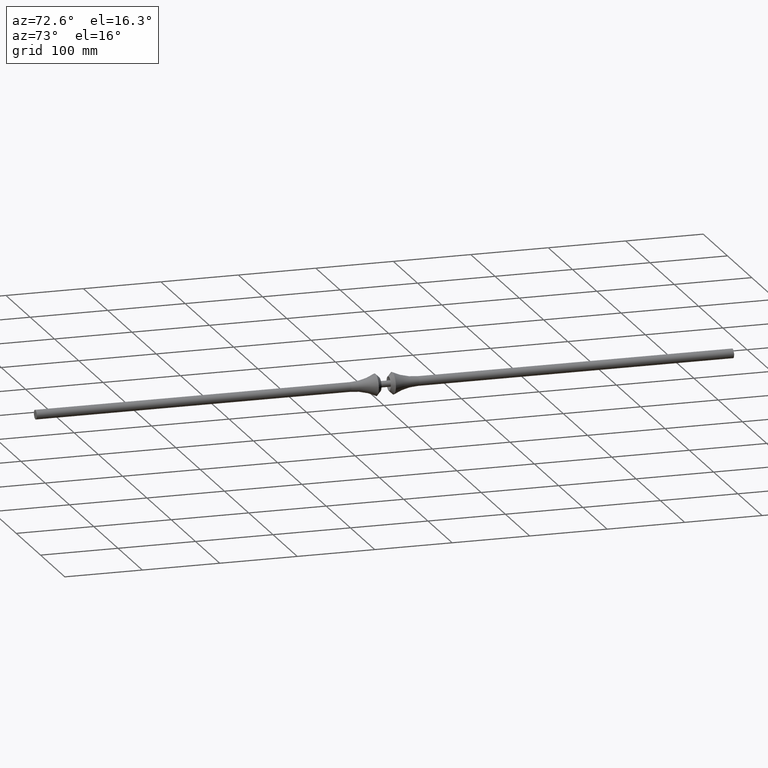
[diagram: clean part render]
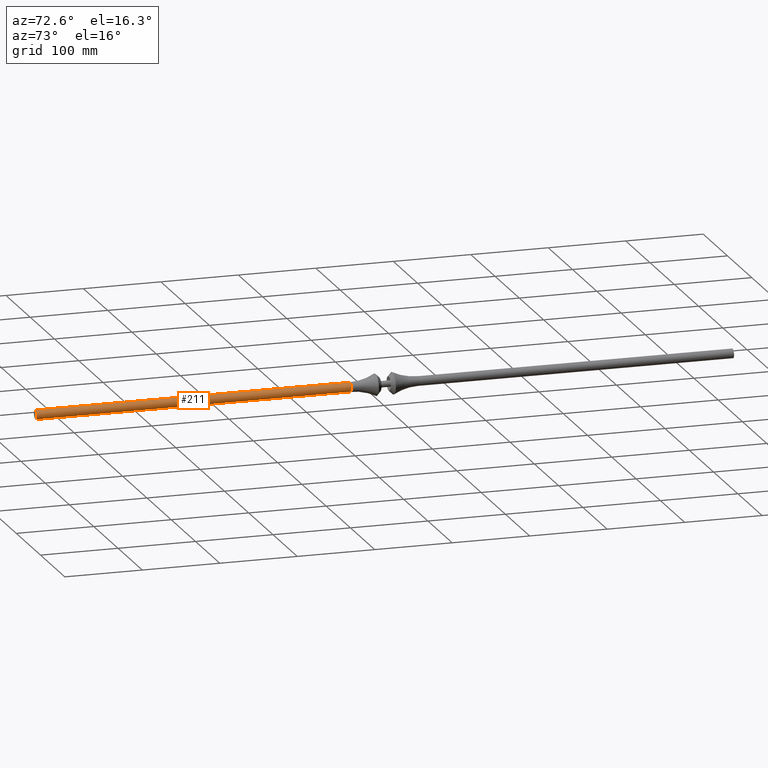
[diagram: same view with one face highlighted and labeled with its STEP entity id]
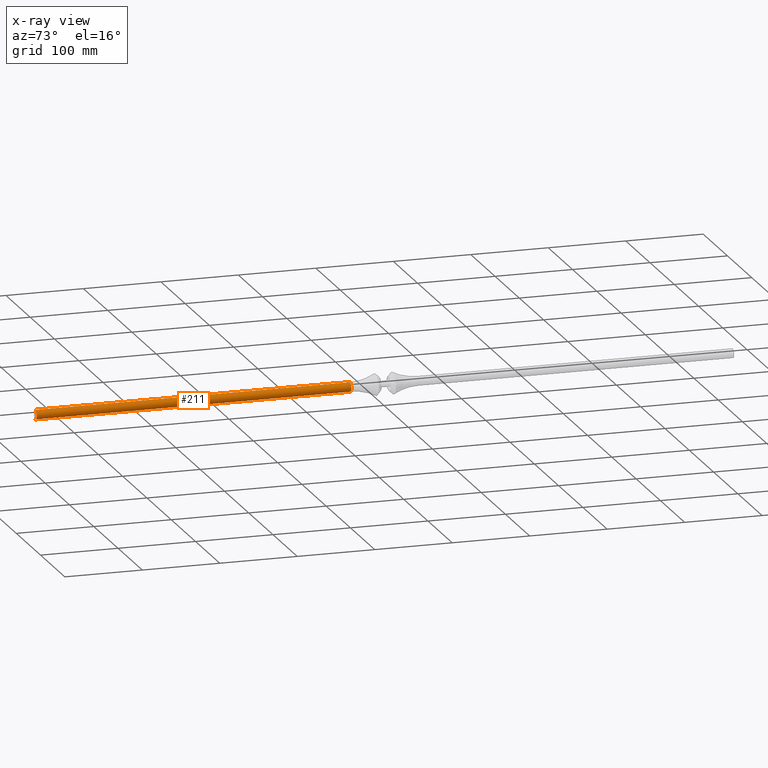
[diagram: x-ray of the same camera — body ghosted, the highlighted face saturated]
A machine part, auxiliary view. The second image highlights one B-rep face of the part: STEP entity #211.
The next image is the same camera in x-ray: the body ghosted, the highlighted face saturated — about 0% of this face is hidden behind the body in this view.
In plain terms, the highlighted cylindrical surface (edge-blend (fillet) strip) has radius 6 mm, axis along (0, 1, 0).
Its self-contained STEP definition (entity closure, byte-faithful):
#78 = AXIS2_PLACEMENT_3D ( 'NONE', #2023, #324, #2007 ) ;
#141 = CARTESIAN_POINT ( 'NONE',  ( 0.000000000000000000, 406.0000000000000000, -6.000000000000000000 ) ) ;
#160 = DIRECTION ( 'NONE',  ( 0.000000000000000000, -1.000000000000000000, 0.000000000000000000 ) ) ;
#207 = CARTESIAN_POINT ( 'NONE',  ( 0.000000000000000000, 0.000000000000000000, -6.000000000000000000 ) ) ;
#211 = ADVANCED_FACE ( 'NONE', ( #587 ), #952, .T. ) ;
#255 = VERTEX_POINT ( 'NONE', #1901 ) ;
#312 = VERTEX_POINT ( 'NONE', #207 ) ;
#324 = DIRECTION ( 'NONE',  ( 0.000000000000000000, -1.000000000000000000, 0.000000000000000000 ) ) ;
#541 = DIRECTION ( 'NONE',  ( 0.000000000000000000, 0.000000000000000000, -1.000000000000000000 ) ) ;
#587 = FACE_OUTER_BOUND ( 'NONE', #2287, .T. ) ;
#647 = CIRCLE ( 'NONE', #78, 6.000000000000000000 ) ;
#722 = ORIENTED_EDGE ( 'NONE', *, *, #2473, .F. ) ;
#747 = LINE ( 'NONE', #2456, #940 ) ;
#815 = ORIENTED_EDGE ( 'NONE', *, *, #1905, .T. ) ;
#846 = VECTOR ( 'NONE', #160, 1000.000000000000000 ) ;
#940 = VECTOR ( 'NONE', #1142, 1000.000000000000000 ) ;
#952 = CYLINDRICAL_SURFACE ( 'NONE', #1615, 6.000000000000000000 ) ;
#1049 = DIRECTION ( 'NONE',  ( 0.000000000000000000, 0.000000000000000000, -1.000000000000000000 ) ) ;
#1142 = DIRECTION ( 'NONE',  ( 0.000000000000000000, -1.000000000000000000, 0.000000000000000000 ) ) ;
#1179 = LINE ( 'NONE', #1444, #846 ) ;
#1257 = CIRCLE ( 'NONE', #1707, 6.000000000000000000 ) ;
#1332 = ORIENTED_EDGE ( 'NONE', *, *, #2243, .T. ) ;
#1441 = EDGE_CURVE ( 'NONE', #312, #2323, #1257, .T. ) ;
#1444 = CARTESIAN_POINT ( 'NONE',  ( 7.347880794884119736E-16, 0.000000000000000000, 6.000000000000000000 ) ) ;
#1492 = DIRECTION ( 'NONE',  ( 0.000000000000000000, -1.000000000000000000, 0.000000000000000000 ) ) ;
#1527 = ORIENTED_EDGE ( 'NONE', *, *, #1441, .F. ) ;
#1615 = AXIS2_PLACEMENT_3D ( 'NONE', #2789, #1492, #1049 ) ;
#1664 = VERTEX_POINT ( 'NONE', #141 ) ;
#1707 = AXIS2_PLACEMENT_3D ( 'NONE', #2284, #2708, #541 ) ;
#1901 = CARTESIAN_POINT ( 'NONE',  ( 7.347880794884119736E-16, 406.0000000000000000, 6.000000000000000000 ) ) ;
#1905 = EDGE_CURVE ( 'NONE', #255, #2323, #1179, .T. ) ;
#2007 = DIRECTION ( 'NONE',  ( 0.000000000000000000, 0.000000000000000000, -1.000000000000000000 ) ) ;
#2023 = CARTESIAN_POINT ( 'NONE',  ( 0.000000000000000000, 406.0000000000000000, 0.000000000000000000 ) ) ;
#2243 = EDGE_CURVE ( 'NONE', #1664, #255, #647, .T. ) ;
#2284 = CARTESIAN_POINT ( 'NONE',  ( 0.000000000000000000, 0.000000000000000000, 0.000000000000000000 ) ) ;
#2287 = EDGE_LOOP ( 'NONE', ( #1332, #815, #1527, #722 ) ) ;
#2323 = VERTEX_POINT ( 'NONE', #2697 ) ;
#2456 = CARTESIAN_POINT ( 'NONE',  ( 0.000000000000000000, 0.000000000000000000, -6.000000000000000000 ) ) ;
#2473 = EDGE_CURVE ( 'NONE', #1664, #312, #747, .T. ) ;
#2697 = CARTESIAN_POINT ( 'NONE',  ( 7.347880794884119736E-16, 0.000000000000000000, 6.000000000000000000 ) ) ;
#2708 = DIRECTION ( 'NONE',  ( 0.000000000000000000, -1.000000000000000000, 0.000000000000000000 ) ) ;
#2789 = CARTESIAN_POINT ( 'NONE',  ( 0.000000000000000000, 0.000000000000000000, 0.000000000000000000 ) ) ;